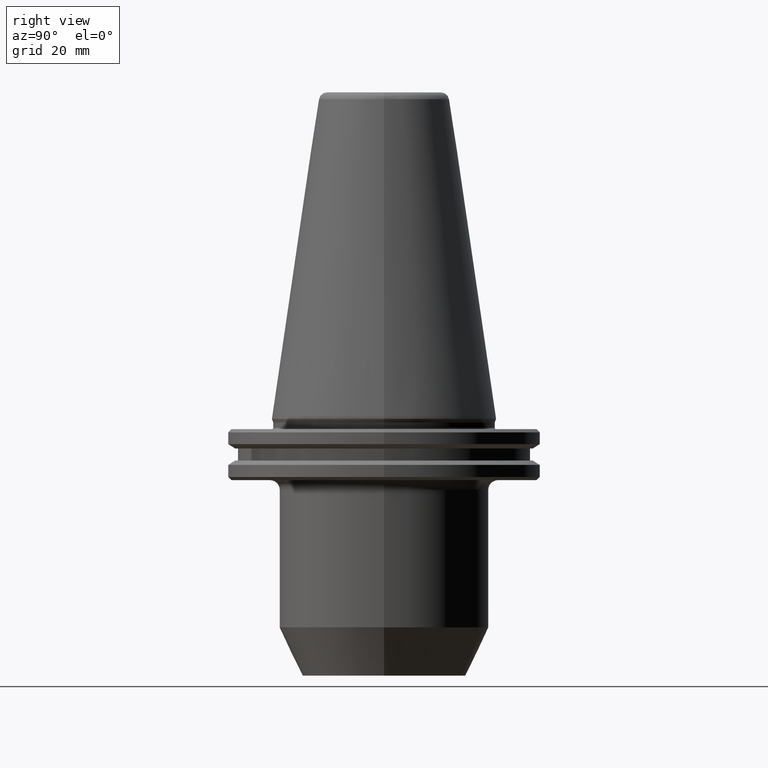
[diagram: clean part render]
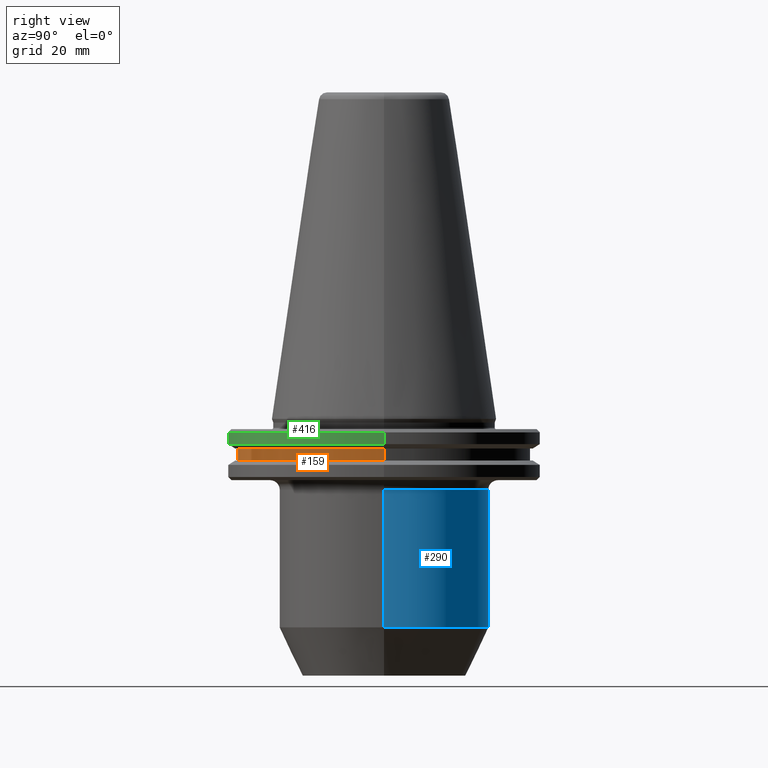
[diagram: same view with three faces highlighted in distinct colors, each labeled with its STEP entity id]
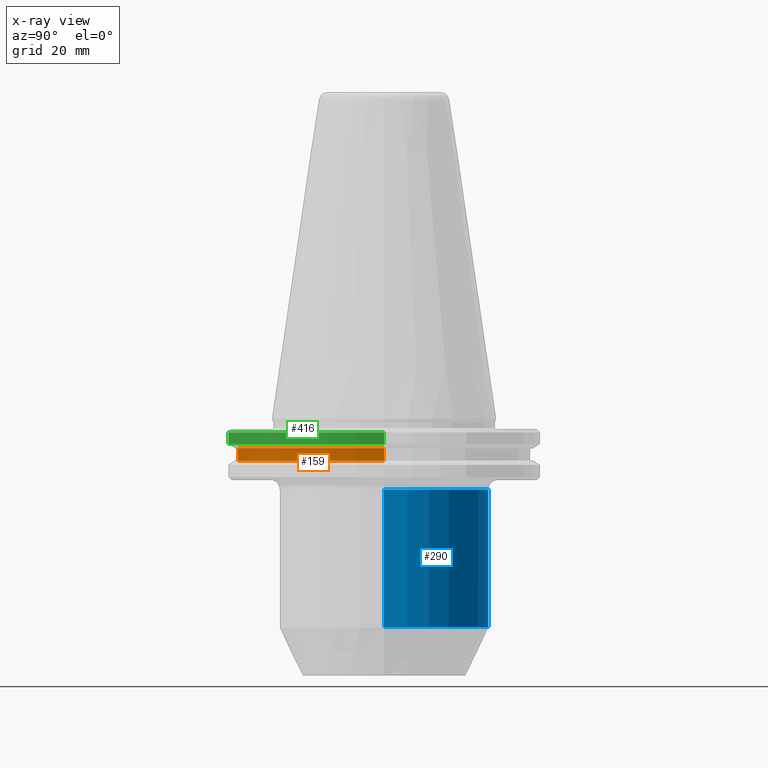
[diagram: x-ray of the same camera — body ghosted, the three highlighted faces saturated]
A machine part, right view with three faces highlighted in distinct colors.
The next image is the same camera in x-ray (body ghosted, the three faces saturated) — at least one of them is partly hidden behind the body in this view.
Their STEP definitions:

[orange] entity #159 — the highlighted cylindrical surface (partial cylindrical patch) has radius 45.5 mm, axis along (-0, -0, 1).
#10 = CARTESIAN_POINT ( 'NONE',  ( 0.0000000000000000000, 0.0000000000000000000, -12.97500000000006900 ) ) ;
#61 = DIRECTION ( 'NONE',  ( -0.0000000000000000000, -0.0000000000000000000, 1.000000000000000000 ) ) ;
#111 = ORIENTED_EDGE ( 'NONE', *, *, #880, .T. ) ;
#123 = EDGE_CURVE ( 'NONE', #971, #667, #932, .T. ) ;
#159 = ADVANCED_FACE ( 'NONE', ( #891 ), #652, .T. ) ;
#167 = DIRECTION ( 'NONE',  ( -0.0000000000000000000, -0.0000000000000000000, 1.000000000000000000 ) ) ;
#171 = LINE ( 'NONE', #497, #355 ) ;
#210 = AXIS2_PLACEMENT_3D ( 'NONE', #10, #702, #322 ) ;
#239 = CARTESIAN_POINT ( 'NONE',  ( 0.0000000000000000000, 0.0000000000000000000, 101.7499999999999600 ) ) ;
#255 = EDGE_LOOP ( 'NONE', ( #563, #946, #111, #892 ) ) ;
#259 = EDGE_CURVE ( 'NONE', #544, #766, #289, .T. ) ;
#289 = CIRCLE ( 'NONE', #896, 45.50000000000020600 ) ;
#321 = CARTESIAN_POINT ( 'NONE',  ( 45.50000000000020600, 0.0000000000000000000, -12.97500000000006900 ) ) ;
#322 = DIRECTION ( 'NONE',  ( 1.000000000000000000, 0.0000000000000000000, 0.0000000000000000000 ) ) ;
#324 = VECTOR ( 'NONE', #509, 1000.000000000000000 ) ;
#336 = EDGE_CURVE ( 'NONE', #971, #544, #171, .T. ) ;
#355 = VECTOR ( 'NONE', #574, 1000.000000000000000 ) ;
#497 = CARTESIAN_POINT ( 'NONE',  ( -45.50000000000020600, 5.572142936120482400E-015, 101.7499999999999600 ) ) ;
#509 = DIRECTION ( 'NONE',  ( -0.0000000000000000000, -0.0000000000000000000, 1.000000000000000000 ) ) ;
#531 = CARTESIAN_POINT ( 'NONE',  ( 0.0000000000000000000, 0.0000000000000000000, -9.224999999999926800 ) ) ;
#544 = VERTEX_POINT ( 'NONE', #963 ) ;
#563 = ORIENTED_EDGE ( 'NONE', *, *, #336, .F. ) ;
#574 = DIRECTION ( 'NONE',  ( -0.0000000000000000000, -0.0000000000000000000, 1.000000000000000000 ) ) ;
#586 = CARTESIAN_POINT ( 'NONE',  ( 45.50000000000020600, 0.0000000000000000000, -9.224999999999926800 ) ) ;
#600 = CARTESIAN_POINT ( 'NONE',  ( 45.50000000000020600, 0.0000000000000000000, 101.7499999999999600 ) ) ;
#606 = DIRECTION ( 'NONE',  ( 1.000000000000000000, 0.0000000000000000000, 0.0000000000000000000 ) ) ;
#652 = CYLINDRICAL_SURFACE ( 'NONE', #991, 45.50000000000020600 ) ;
#667 = VERTEX_POINT ( 'NONE', #321 ) ;
#702 = DIRECTION ( 'NONE',  ( -0.0000000000000000000, -0.0000000000000000000, 1.000000000000000000 ) ) ;
#718 = CARTESIAN_POINT ( 'NONE',  ( -45.50000000000020600, 5.572142936120482400E-015, -12.97500000000006900 ) ) ;
#766 = VERTEX_POINT ( 'NONE', #586 ) ;
#783 = DIRECTION ( 'NONE',  ( 1.000000000000000000, 0.0000000000000000000, 0.0000000000000000000 ) ) ;
#880 = EDGE_CURVE ( 'NONE', #667, #766, #940, .T. ) ;
#891 = FACE_OUTER_BOUND ( 'NONE', #255, .T. ) ;
#892 = ORIENTED_EDGE ( 'NONE', *, *, #259, .F. ) ;
#896 = AXIS2_PLACEMENT_3D ( 'NONE', #531, #61, #606 ) ;
#932 = CIRCLE ( 'NONE', #210, 45.50000000000020600 ) ;
#940 = LINE ( 'NONE', #600, #324 ) ;
#946 = ORIENTED_EDGE ( 'NONE', *, *, #123, .T. ) ;
#963 = CARTESIAN_POINT ( 'NONE',  ( -45.50000000000020600, 5.572142936120482400E-015, -9.224999999999926800 ) ) ;
#971 = VERTEX_POINT ( 'NONE', #718 ) ;
#991 = AXIS2_PLACEMENT_3D ( 'NONE', #239, #167, #783 ) ;

[blue] entity #290 — the highlighted cylindrical surface (partial cylindrical patch) has radius 32.5 mm, axis along (-0, -0, 1).
#34 = EDGE_CURVE ( 'NONE', #979, #373, #441, .T. ) ;
#89 = CARTESIAN_POINT ( 'NONE',  ( -32.50000000000000000, 3.980102097228898600E-015, -64.98845155643312000 ) ) ;
#126 = DIRECTION ( 'NONE',  ( -0.0000000000000000000, -0.0000000000000000000, 1.000000000000000000 ) ) ;
#143 = DIRECTION ( 'NONE',  ( 1.000000000000000000, 0.0000000000000000000, 0.0000000000000000000 ) ) ;
#145 = ORIENTED_EDGE ( 'NONE', *, *, #905, .F. ) ;
#153 = DIRECTION ( 'NONE',  ( -0.0000000000000000000, -0.0000000000000000000, 1.000000000000000000 ) ) ;
#174 = CARTESIAN_POINT ( 'NONE',  ( -32.50000000000000000, 3.980102097228898600E-015, -22.09999999999995200 ) ) ;
#200 = EDGE_LOOP ( 'NONE', ( #949, #513, #967, #145 ) ) ;
#207 = CIRCLE ( 'NONE', #610, 32.50000000000000000 ) ;
#256 = DIRECTION ( 'NONE',  ( 0.0000000000000000000, 0.0000000000000000000, -1.000000000000000000 ) ) ;
#290 = ADVANCED_FACE ( 'NONE', ( #409 ), #987, .T. ) ;
#292 = DIRECTION ( 'NONE',  ( -0.0000000000000000000, -0.0000000000000000000, 1.000000000000000000 ) ) ;
#320 = CARTESIAN_POINT ( 'NONE',  ( 32.50000000000000000, 0.0000000000000000000, -64.98845155643312000 ) ) ;
#341 = CARTESIAN_POINT ( 'NONE',  ( 0.0000000000000000000, 0.0000000000000000000, -22.09999999999995200 ) ) ;
#373 = VERTEX_POINT ( 'NONE', #174 ) ;
#398 = CARTESIAN_POINT ( 'NONE',  ( 0.0000000000000000000, 0.0000000000000000000, 158.1180504483445200 ) ) ;
#409 = FACE_OUTER_BOUND ( 'NONE', #200, .T. ) ;
#431 = EDGE_CURVE ( 'NONE', #373, #564, #207, .T. ) ;
#437 = AXIS2_PLACEMENT_3D ( 'NONE', #619, #153, #699 ) ;
#441 = LINE ( 'NONE', #950, #643 ) ;
#507 = VECTOR ( 'NONE', #292, 1000.000000000000000 ) ;
#513 = ORIENTED_EDGE ( 'NONE', *, *, #34, .T. ) ;
#518 = CARTESIAN_POINT ( 'NONE',  ( 32.50000000000000000, 0.0000000000000000000, 158.1180504483445200 ) ) ;
#533 = VERTEX_POINT ( 'NONE', #320 ) ;
#564 = VERTEX_POINT ( 'NONE', #721 ) ;
#610 = AXIS2_PLACEMENT_3D ( 'NONE', #341, #256, #804 ) ;
#619 = CARTESIAN_POINT ( 'NONE',  ( 0.0000000000000000000, 0.0000000000000000000, -64.98845155643312000 ) ) ;
#627 = EDGE_CURVE ( 'NONE', #533, #979, #909, .T. ) ;
#643 = VECTOR ( 'NONE', #126, 1000.000000000000000 ) ;
#682 = DIRECTION ( 'NONE',  ( -0.0000000000000000000, -0.0000000000000000000, 1.000000000000000000 ) ) ;
#699 = DIRECTION ( 'NONE',  ( 1.000000000000000000, 0.0000000000000000000, 0.0000000000000000000 ) ) ;
#721 = CARTESIAN_POINT ( 'NONE',  ( 32.50000000000000000, 0.0000000000000000000, -22.09999999999995200 ) ) ;
#741 = LINE ( 'NONE', #518, #507 ) ;
#804 = DIRECTION ( 'NONE',  ( 1.000000000000000000, 0.0000000000000000000, 0.0000000000000000000 ) ) ;
#824 = AXIS2_PLACEMENT_3D ( 'NONE', #398, #682, #143 ) ;
#905 = EDGE_CURVE ( 'NONE', #533, #564, #741, .T. ) ;
#909 = CIRCLE ( 'NONE', #437, 32.50000000000000000 ) ;
#949 = ORIENTED_EDGE ( 'NONE', *, *, #627, .T. ) ;
#950 = CARTESIAN_POINT ( 'NONE',  ( -32.50000000000000000, 3.980102097228898600E-015, 158.1180504483445200 ) ) ;
#967 = ORIENTED_EDGE ( 'NONE', *, *, #431, .T. ) ;
#979 = VERTEX_POINT ( 'NONE', #89 ) ;
#987 = CYLINDRICAL_SURFACE ( 'NONE', #824, 32.50000000000000000 ) ;

[green] entity #416 — the highlighted cylindrical surface (partial cylindrical patch) has radius 48.75 mm, axis along (-0, -0, 1).
#59 = LINE ( 'NONE', #916, #581 ) ;
#71 = EDGE_LOOP ( 'NONE', ( #726, #389, #855, #204 ) ) ;
#82 = DIRECTION ( 'NONE',  ( 1.000000000000000000, 0.0000000000000000000, 0.0000000000000000000 ) ) ;
#146 = DIRECTION ( 'NONE',  ( -0.0000000000000000000, -0.0000000000000000000, 1.000000000000000000 ) ) ;
#162 = EDGE_CURVE ( 'NONE', #342, #407, #866, .T. ) ;
#185 = CARTESIAN_POINT ( 'NONE',  ( 0.0000000000000000000, 0.0000000000000000000, -4.199999999999870500 ) ) ;
#204 = ORIENTED_EDGE ( 'NONE', *, *, #493, .F. ) ;
#254 = DIRECTION ( 'NONE',  ( -0.0000000000000000000, -0.0000000000000000000, 1.000000000000000000 ) ) ;
#280 = CARTESIAN_POINT ( 'NONE',  ( 0.0000000000000000000, 0.0000000000000000000, -7.852404735807838600 ) ) ;
#305 = EDGE_CURVE ( 'NONE', #407, #618, #59, .T. ) ;
#314 = EDGE_CURVE ( 'NONE', #342, #433, #788, .T. ) ;
#335 = DIRECTION ( 'NONE',  ( 1.000000000000000000, 0.0000000000000000000, 0.0000000000000000000 ) ) ;
#342 = VERTEX_POINT ( 'NONE', #530 ) ;
#389 = ORIENTED_EDGE ( 'NONE', *, *, #162, .T. ) ;
#391 = CARTESIAN_POINT ( 'NONE',  ( 48.74999999999995700, 0.0000000000000000000, -4.199999999999870500 ) ) ;
#407 = VERTEX_POINT ( 'NONE', #415 ) ;
#415 = CARTESIAN_POINT ( 'NONE',  ( 48.74999999999995700, 0.0000000000000000000, -7.852404735807838600 ) ) ;
#416 = ADVANCED_FACE ( 'NONE', ( #640 ), #825, .T. ) ;
#421 = CARTESIAN_POINT ( 'NONE',  ( -48.74999999999995700, 5.970153145843342400E-015, -4.199999999999870500 ) ) ;
#433 = VERTEX_POINT ( 'NONE', #421 ) ;
#478 = DIRECTION ( 'NONE',  ( -0.0000000000000000000, -0.0000000000000000000, 1.000000000000000000 ) ) ;
#493 = EDGE_CURVE ( 'NONE', #433, #618, #917, .T. ) ;
#529 = AXIS2_PLACEMENT_3D ( 'NONE', #185, #551, #82 ) ;
#530 = CARTESIAN_POINT ( 'NONE',  ( -48.74999999999995700, 5.970153145843342400E-015, -7.852404735807838600 ) ) ;
#551 = DIRECTION ( 'NONE',  ( -0.0000000000000000000, -0.0000000000000000000, 1.000000000000000000 ) ) ;
#573 = AXIS2_PLACEMENT_3D ( 'NONE', #736, #254, #335 ) ;
#581 = VECTOR ( 'NONE', #990, 1000.000000000000000 ) ;
#618 = VERTEX_POINT ( 'NONE', #391 ) ;
#640 = FACE_OUTER_BOUND ( 'NONE', #71, .T. ) ;
#683 = CARTESIAN_POINT ( 'NONE',  ( -48.74999999999995700, 5.970153145843342400E-015, 101.7499999999999600 ) ) ;
#726 = ORIENTED_EDGE ( 'NONE', *, *, #314, .F. ) ;
#736 = CARTESIAN_POINT ( 'NONE',  ( 0.0000000000000000000, 0.0000000000000000000, 101.7499999999999600 ) ) ;
#788 = LINE ( 'NONE', #683, #966 ) ;
#825 = CYLINDRICAL_SURFACE ( 'NONE', #573, 48.74999999999995700 ) ;
#855 = ORIENTED_EDGE ( 'NONE', *, *, #305, .T. ) ;
#866 = CIRCLE ( 'NONE', #993, 48.74999999999995700 ) ;
#916 = CARTESIAN_POINT ( 'NONE',  ( 48.74999999999995700, 0.0000000000000000000, 101.7499999999999600 ) ) ;
#917 = CIRCLE ( 'NONE', #529, 48.74999999999995700 ) ;
#935 = DIRECTION ( 'NONE',  ( 1.000000000000000000, 0.0000000000000000000, 0.0000000000000000000 ) ) ;
#966 = VECTOR ( 'NONE', #146, 1000.000000000000000 ) ;
#990 = DIRECTION ( 'NONE',  ( -0.0000000000000000000, -0.0000000000000000000, 1.000000000000000000 ) ) ;
#993 = AXIS2_PLACEMENT_3D ( 'NONE', #280, #478, #935 ) ;